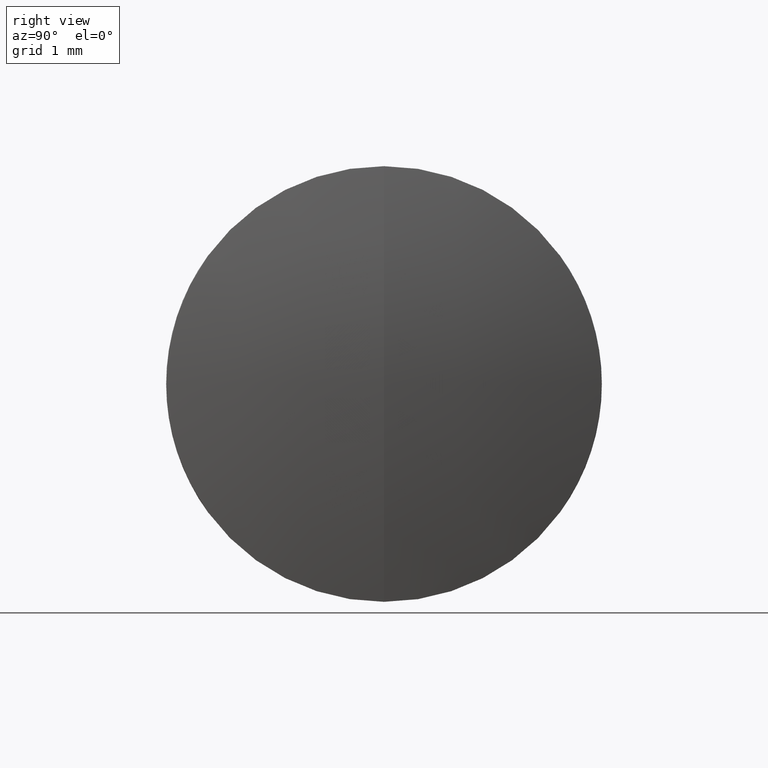
[diagram: clean part render]
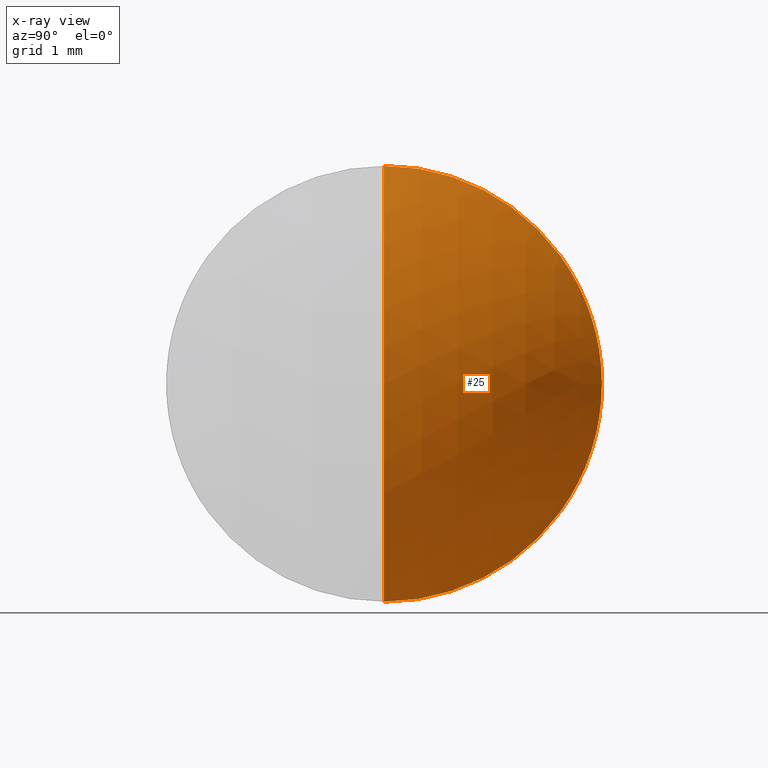
[diagram: x-ray — body ghosted, one internal face saturated and labeled with its STEP entity id]
A machine part, right view, then the same camera in x-ray: the body is ghosted and one INTERNAL B-rep face — a face not visible from any outside direction — is saturated and labeled: STEP entity #25.
In plain terms, the highlighted spherical surface has radius 3.664 mm.
Its self-contained STEP definition (entity closure, byte-faithful):
#12 = AXIS2_PLACEMENT_3D ( 'NONE', #312, #35, #219 ) ;
#15 = CARTESIAN_POINT ( 'NONE',  ( 1.094604339932686600, 0.0000000000000000000, -3.388131789017201400E-018 ) ) ;
#20 = EDGE_CURVE ( 'NONE', #185, #210, #229, .T. ) ;
#25 = ADVANCED_FACE ( 'NONE', ( #57 ), #239, .T. ) ;
#35 = DIRECTION ( 'NONE',  ( 0.0000000000000000000, -1.000000000000000000, 0.0000000000000000000 ) ) ;
#42 = DIRECTION ( 'NONE',  ( 0.0000000000000000000, -1.224646799147353200E-016, 1.000000000000000000 ) ) ;
#57 = FACE_OUTER_BOUND ( 'NONE', #117, .T. ) ;
#58 = ORIENTED_EDGE ( 'NONE', *, *, #134, .F. ) ;
#63 = AXIS2_PLACEMENT_3D ( 'NONE', #66, #254, #281 ) ;
#66 = CARTESIAN_POINT ( 'NONE',  ( 2.966073281700092800, 0.0000000000000000000, 0.0000000000000000000 ) ) ;
#93 = DIRECTION ( 'NONE',  ( 0.0000000000000000000, 0.0000000000000000000, 1.000000000000000000 ) ) ;
#117 = EDGE_LOOP ( 'NONE', ( #58, #139, #193 ) ) ;
#134 = EDGE_CURVE ( 'NONE', #154, #185, #270, .T. ) ;
#139 = ORIENTED_EDGE ( 'NONE', *, *, #205, .T. ) ;
#154 = VERTEX_POINT ( 'NONE', #285 ) ;
#156 = CIRCLE ( 'NONE', #195, 3.664000000000002400 ) ;
#185 = VERTEX_POINT ( 'NONE', #257 ) ;
#192 = CARTESIAN_POINT ( 'NONE',  ( 2.966073281700092800, 3.857637417314162700E-016, -3.149999999999999900 ) ) ;
#193 = ORIENTED_EDGE ( 'NONE', *, *, #20, .F. ) ;
#194 = DIRECTION ( 'NONE',  ( -0.0000000000000000000, 1.000000000000000000, 1.224646799147353200E-016 ) ) ;
#195 = AXIS2_PLACEMENT_3D ( 'NONE', #15, #194, #42 ) ;
#205 = EDGE_CURVE ( 'NONE', #154, #210, #156, .T. ) ;
#210 = VERTEX_POINT ( 'NONE', #192 ) ;
#213 = CARTESIAN_POINT ( 'NONE',  ( 1.094604339932686600, 0.0000000000000000000, -3.388131789017201400E-018 ) ) ;
#219 = DIRECTION ( 'NONE',  ( 0.0000000000000000000, 0.0000000000000000000, -1.000000000000000000 ) ) ;
#229 = CIRCLE ( 'NONE', #63, 3.149999999999999900 ) ;
#239 = SPHERICAL_SURFACE ( 'NONE', #273, 3.664000000000002400 ) ;
#254 = DIRECTION ( 'NONE',  ( -1.000000000000000000, -0.0000000000000000000, -0.0000000000000000000 ) ) ;
#257 = CARTESIAN_POINT ( 'NONE',  ( 2.966073281700092800, 0.0000000000000000000, 3.149999999999999900 ) ) ;
#270 = CIRCLE ( 'NONE', #12, 3.664000000000002400 ) ;
#273 = AXIS2_PLACEMENT_3D ( 'NONE', #213, #309, #93 ) ;
#281 = DIRECTION ( 'NONE',  ( 0.0000000000000000000, 0.0000000000000000000, 1.000000000000000000 ) ) ;
#285 = CARTESIAN_POINT ( 'NONE',  ( 4.758604339932689200, 0.0000000000000000000, 2.209671618147780500E-016 ) ) ;
#309 = DIRECTION ( 'NONE',  ( 0.0000000000000000000, 1.000000000000000000, 0.0000000000000000000 ) ) ;
#312 = CARTESIAN_POINT ( 'NONE',  ( 1.094604339932686600, 0.0000000000000000000, -3.388131789017201400E-018 ) ) ;